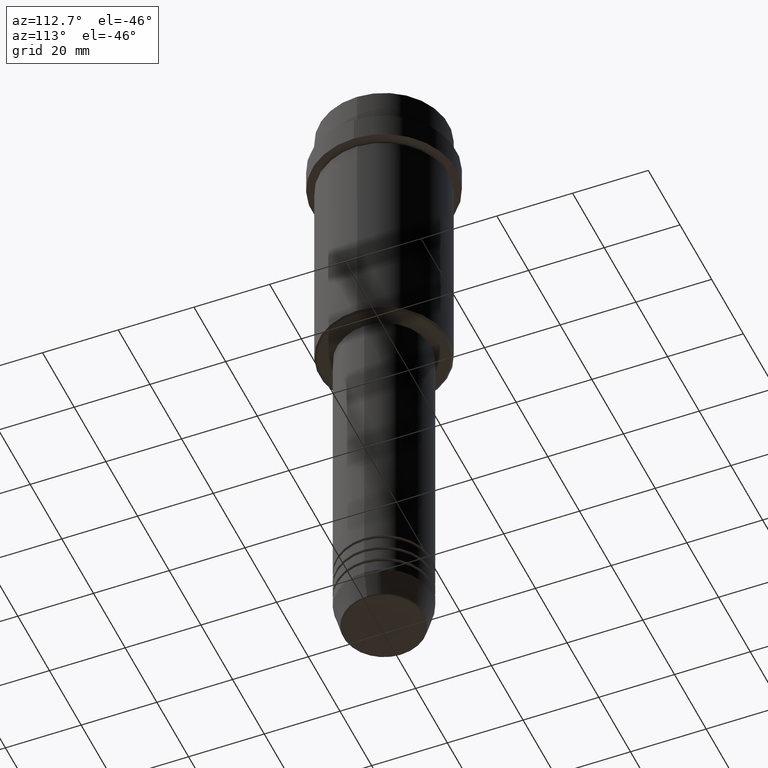
[diagram: clean part render]
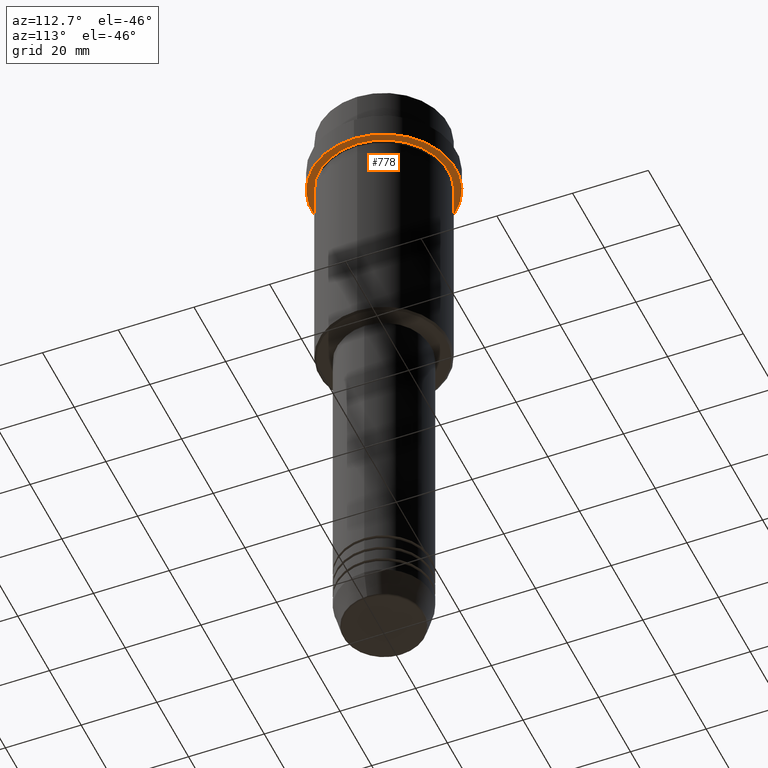
[diagram: same view with one face highlighted and labeled with its STEP entity id]
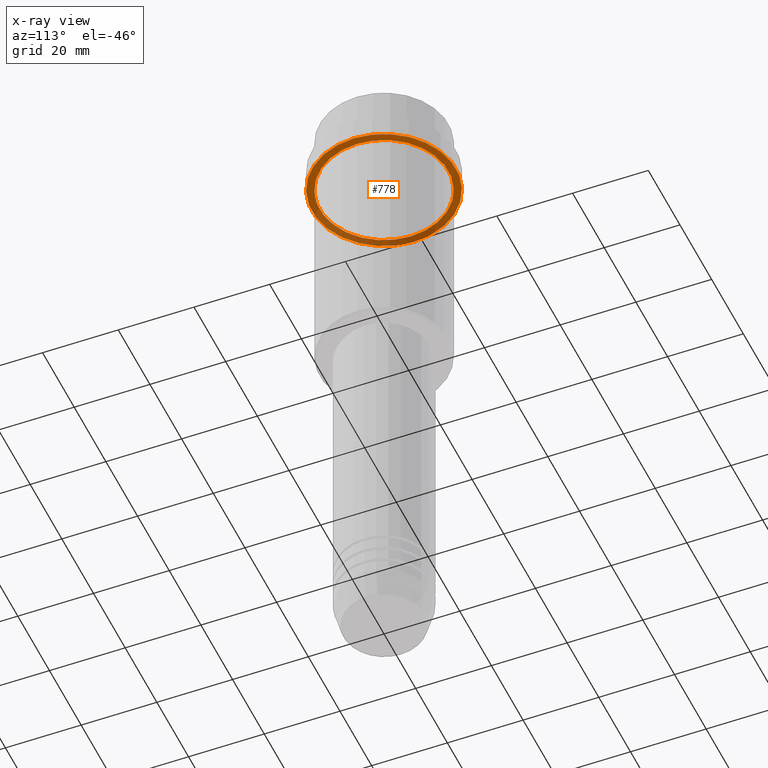
[diagram: x-ray of the same camera — body ghosted, the highlighted face saturated]
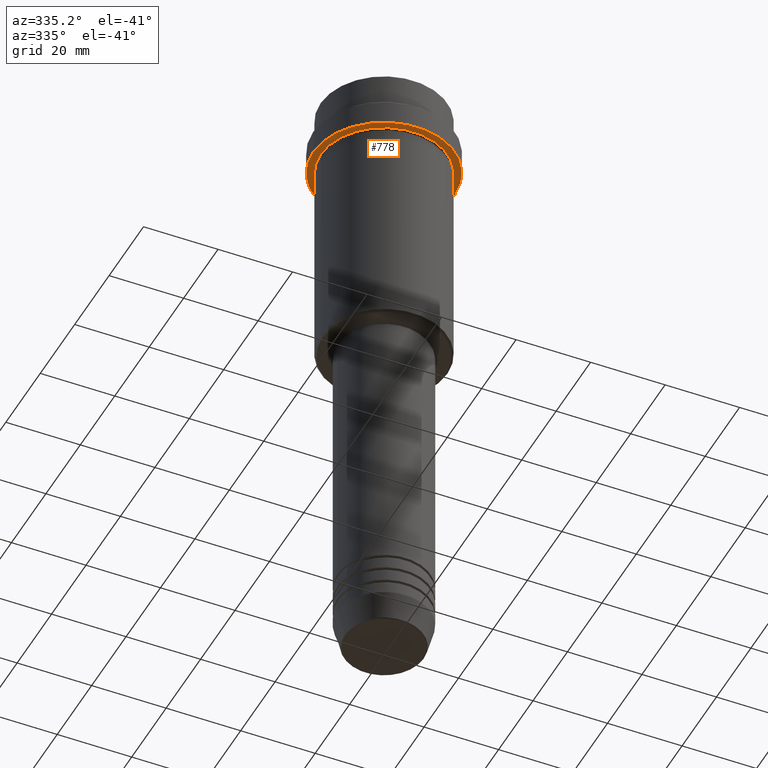
[diagram: same view with one face highlighted and labeled with its STEP entity id]
A machine part, auxiliary view. The second image highlights one B-rep face of the part: STEP entity #778.
The next image is the same camera in x-ray: the body ghosted, the highlighted face saturated — about 36% of this face is hidden behind the body in this view.
A second angle (auxiliary view) of the same face is appended — the face is thin or edge-on in the first view.
In plain terms, the highlighted planar face has unit normal (0, 0, -1).
Its self-contained STEP definition (entity closure, byte-faithful):
#1 = CARTESIAN_POINT ( 'NONE',  ( -16.99999999999997513, 0.000000000000000000, -17.00000000000000000 ) ) ;
#16 = AXIS2_PLACEMENT_3D ( 'NONE', #679, #216, #1117 ) ;
#28 = EDGE_LOOP ( 'NONE', ( #1122, #1265 ) ) ;
#43 = VERTEX_POINT ( 'NONE', #913 ) ;
#44 = CARTESIAN_POINT ( 'NONE',  ( -18.99999999999997868, 2.326828918379968604E-15, -17.00000000000000000 ) ) ;
#47 = VERTEX_POINT ( 'NONE', #44 ) ;
#56 = AXIS2_PLACEMENT_3D ( 'NONE', #440, #631, #547 ) ;
#188 = AXIS2_PLACEMENT_3D ( 'NONE', #491, #1387, #353 ) ;
#191 = CIRCLE ( 'NONE', #16, 16.99999999999997513 ) ;
#215 = ORIENTED_EDGE ( 'NONE', *, *, #1349, .T. ) ;
#216 = DIRECTION ( 'NONE',  ( -0.000000000000000000, -0.000000000000000000, 1.000000000000000000 ) ) ;
#223 = VERTEX_POINT ( 'NONE', #518 ) ;
#312 = ORIENTED_EDGE ( 'NONE', *, *, #934, .T. ) ;
#325 = CIRCLE ( 'NONE', #996, 18.99999999999997868 ) ;
#353 = DIRECTION ( 'NONE',  ( -1.000000000000000000, 0.000000000000000000, -0.000000000000000000 ) ) ;
#385 = EDGE_CURVE ( 'NONE', #43, #47, #825, .T. ) ;
#389 = DIRECTION ( 'NONE',  ( 1.000000000000000000, 0.000000000000000000, 0.000000000000000000 ) ) ;
#440 = CARTESIAN_POINT ( 'NONE',  ( 0.000000000000000000, 0.000000000000000000, -17.00000000000000000 ) ) ;
#491 = CARTESIAN_POINT ( 'NONE',  ( 0.000000000000000000, 18.99999999999997868, -17.00000000000000000 ) ) ;
#518 = CARTESIAN_POINT ( 'NONE',  ( 16.99999999999997513, 2.081899558550497519E-15, -17.00000000000000000 ) ) ;
#547 = DIRECTION ( 'NONE',  ( -1.000000000000000000, 0.000000000000000000, 0.000000000000000000 ) ) ;
#631 = DIRECTION ( 'NONE',  ( -0.000000000000000000, -0.000000000000000000, 1.000000000000000000 ) ) ;
#679 = CARTESIAN_POINT ( 'NONE',  ( 0.000000000000000000, 0.000000000000000000, -17.00000000000000000 ) ) ;
#778 = ADVANCED_FACE ( 'NONE', ( #1147, #822 ), #1159, .T. ) ;
#822 = FACE_OUTER_BOUND ( 'NONE', #28, .T. ) ;
#825 = CIRCLE ( 'NONE', #1012, 18.99999999999997868 ) ;
#835 = DIRECTION ( 'NONE',  ( -0.000000000000000000, -0.000000000000000000, 1.000000000000000000 ) ) ;
#913 = CARTESIAN_POINT ( 'NONE',  ( 18.99999999999997868, 0.000000000000000000, -17.00000000000000000 ) ) ;
#934 = EDGE_CURVE ( 'NONE', #223, #1047, #1131, .T. ) ;
#936 = DIRECTION ( 'NONE',  ( 1.000000000000000000, 0.000000000000000000, 0.000000000000000000 ) ) ;
#996 = AXIS2_PLACEMENT_3D ( 'NONE', #1290, #835, #936 ) ;
#1012 = AXIS2_PLACEMENT_3D ( 'NONE', #1378, #1285, #389 ) ;
#1022 = EDGE_CURVE ( 'NONE', #47, #43, #325, .T. ) ;
#1047 = VERTEX_POINT ( 'NONE', #1 ) ;
#1117 = DIRECTION ( 'NONE',  ( -1.000000000000000000, 0.000000000000000000, 0.000000000000000000 ) ) ;
#1122 = ORIENTED_EDGE ( 'NONE', *, *, #385, .F. ) ;
#1131 = CIRCLE ( 'NONE', #56, 16.99999999999997513 ) ;
#1147 = FACE_BOUND ( 'NONE', #1166, .T. ) ;
#1159 = PLANE ( 'NONE',  #188 ) ;
#1166 = EDGE_LOOP ( 'NONE', ( #215, #312 ) ) ;
#1265 = ORIENTED_EDGE ( 'NONE', *, *, #1022, .F. ) ;
#1285 = DIRECTION ( 'NONE',  ( -0.000000000000000000, -0.000000000000000000, 1.000000000000000000 ) ) ;
#1290 = CARTESIAN_POINT ( 'NONE',  ( 0.000000000000000000, 0.000000000000000000, -17.00000000000000000 ) ) ;
#1349 = EDGE_CURVE ( 'NONE', #1047, #223, #191, .T. ) ;
#1378 = CARTESIAN_POINT ( 'NONE',  ( 0.000000000000000000, 0.000000000000000000, -17.00000000000000000 ) ) ;
#1387 = DIRECTION ( 'NONE',  ( 0.000000000000000000, 0.000000000000000000, -1.000000000000000000 ) ) ;